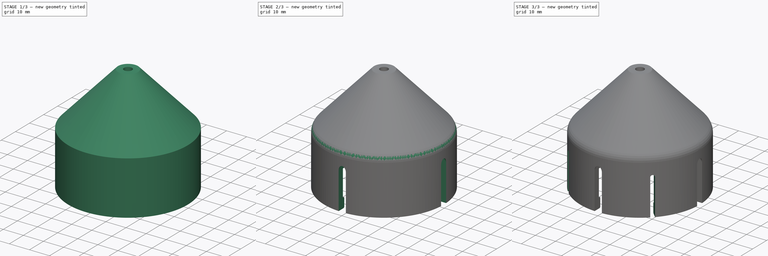
[diagram: build sequence overview — one tinted view per stage of 3, left to right]
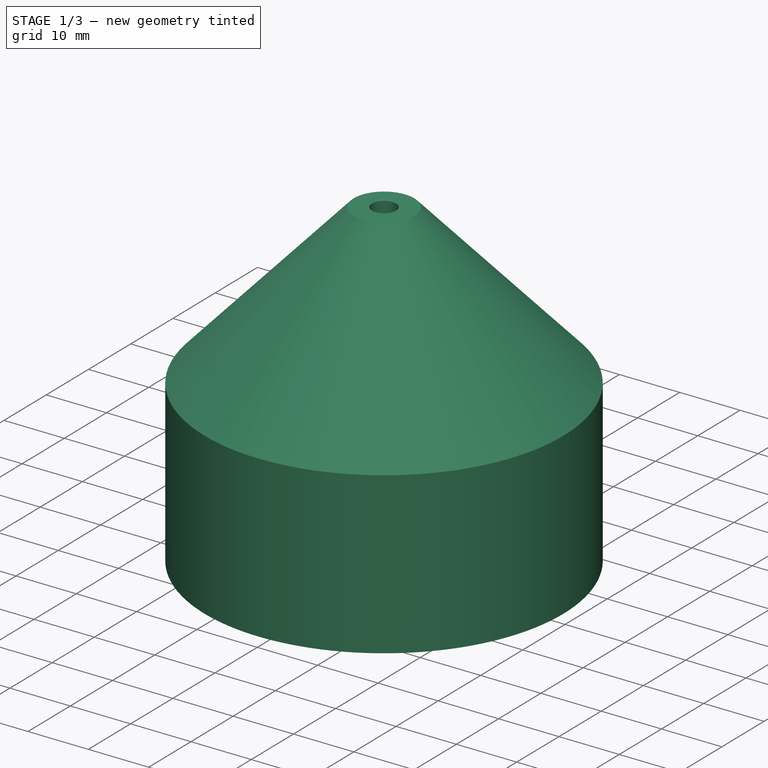
[diagram: stage 1 of 3 — iso view after this stage's code; geometry added in this stage tinted green]
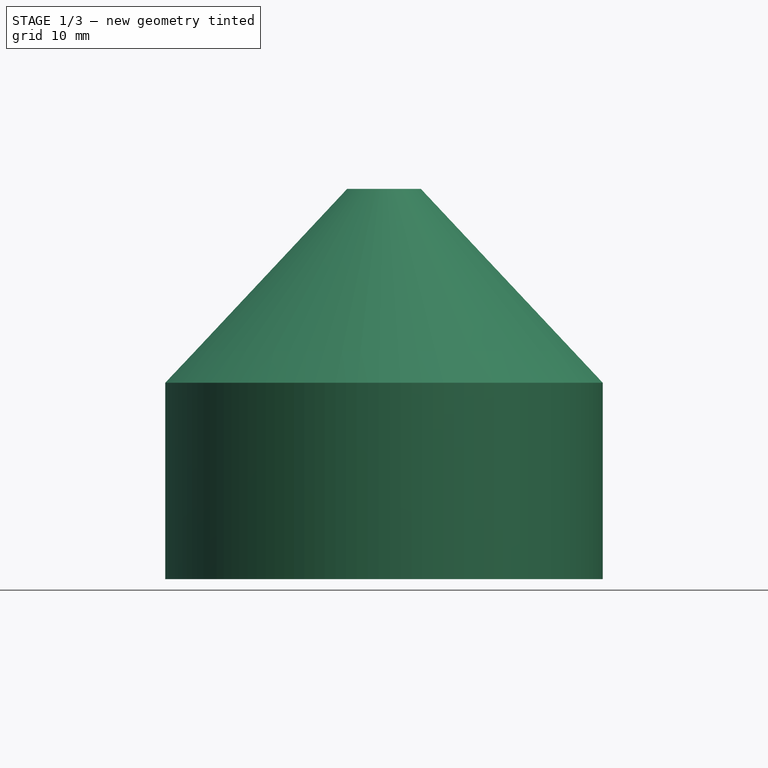
[diagram: stage 1 of 3 — front view after this stage's code; geometry added in this stage tinted green]
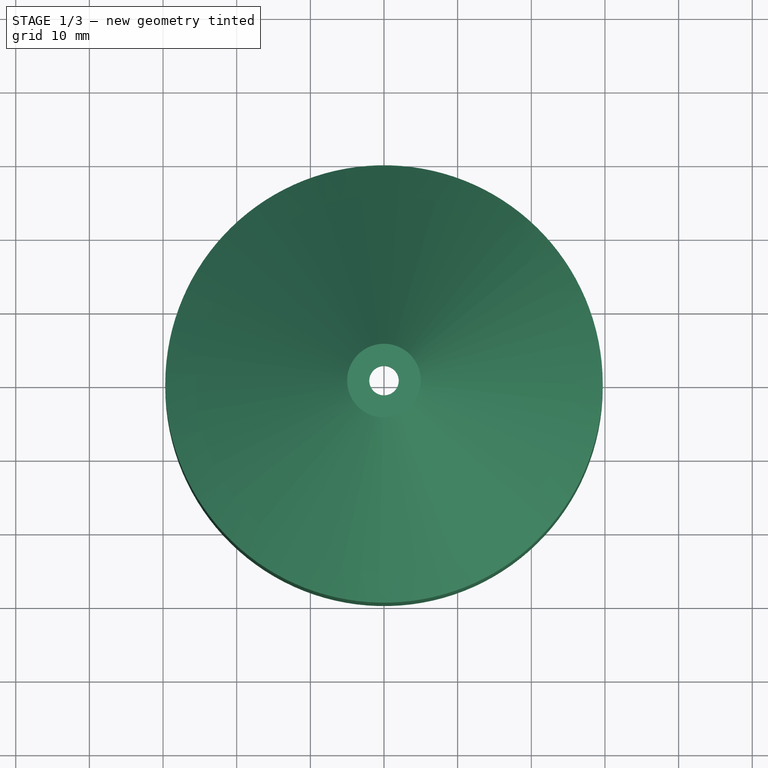
[diagram: stage 1 of 3 — top view after this stage's code; geometry added in this stage tinted green]
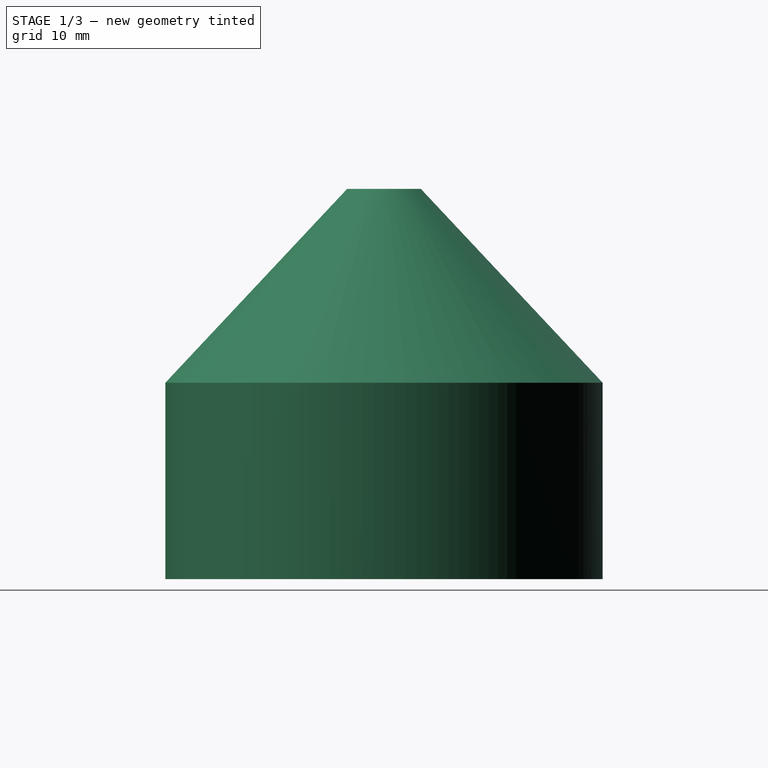
[diagram: stage 1 of 3 — right view after this stage's code; geometry added in this stage tinted green]
FCSTD DOCUMENT  (FreeCAD 0.18R16158 (Git))
Label: 40mm_drain_pipe_top
License: All rights reserved
LicenseURL: http://en.wikipedia.org/wiki/All_rights_reserved
objects: Sketcher::SketchObject×3, PartDesign::Fillet×2, PartDesign::Plane×2, PartDesign::Pocket×2, PartDesign::PolarPattern×2, PartDesign::Revolution×1, PartDesign::Body×1
note: 16 computed .brp shape members not serialized (recipe doc carries the construction recipe); baked Part::Feature solids carry a one-line shape summary decoded from their .brp

FEATURE [Sketcher::SketchObject] Sketch
  MapMode = 5
  Placement = pos=(0,0,0) rot=(1,0,0;1.5708rad)
  Support = -> [XZ_Plane]
  sketch-geometry (11):
    g0: LineSegment StartX=21.7 StartY=0 StartZ=0 EndX=21.7 EndY=12 EndZ=0
    g1: LineSegment StartX=21.7 StartY=12 StartZ=0 EndX=2 EndY=33 EndZ=0
    g2: LineSegment StartX=2 StartY=33 StartZ=0 EndX=2 EndY=35 EndZ=0
    g3: LineSegment StartX=2 StartY=35 StartZ=0 EndX=5 EndY=35 EndZ=0
    g4: LineSegment StartX=5 StartY=35 StartZ=0 EndX=29.7 EndY=8.67005 EndZ=0
    g5: LineSegment StartX=29.7 StartY=8.67005 StartZ=0 EndX=29.7 EndY=-18 EndZ=0
    g6: LineSegment StartX=29.7 StartY=-18 StartZ=0 EndX=25.7 EndY=-18 EndZ=0
    g7: LineSegment StartX=25.7 StartY=-18 StartZ=0 EndX=25.7 EndY=-13 EndZ=0
    g8: LineSegment StartX=25.7 StartY=-13 StartZ=0 EndX=26.7 EndY=-13 EndZ=0
    g9: LineSegment StartX=26.7 StartY=-13 StartZ=0 EndX=26.7 EndY=0 EndZ=0
    g10: LineSegment StartX=26.7 StartY=0 StartZ=0 EndX=21.7 EndY=0 EndZ=0
  constraints (33):
    c: PointOnObject(g0,g-1)
    c: Vertical(g0)
    c: Coincident(g0,g1)
    c: Vertical(g2)
    c: Coincident(g2,g3)
    c: Horizontal(g3)
    c: Coincident(g3,g4)
    c: Coincident(g4,g5)
    c: Vertical(g5)
    c: Coincident(g5,g6)
    c: Coincident(g6,g7)
    c: Vertical(g7)
    c: Coincident(g7,g8)
    c: Coincident(g8,g9)
    c: Vertical(g9)
    c: Coincident(g9,g10)
    c: Horizontal(g10)
    c: Coincident(g0,g10)
    c: Horizontal(g8)
    c: Horizontal(g6)
    c: DistanceY(g0,g0) = 12
    c: DistanceX(g10,g10) = 5
    c: DistanceY(g9,g9) = 13
    c: DistanceY(g7,g7) = 5
    c: DistanceX(g8,g5) = 3
    c: DistanceX(g-1,g0) = 21.7
    c: DistanceY(g-1,g2) = 33
    c: DistanceX(g3,g3) = 3
    c: Parallel(g1,g4)
    c: Coincident(g1,g2)
    c: DistanceY(g2,g2) = 2
    c: DistanceX(g-1,g1) = 2
    c: DistanceX(g6,g6) = 4
FEATURE [PartDesign::Revolution] Revolution
  Angle = 360
  Axis = (0,2e-16,1)
  Base = (0,0,0)
  Placement = pos=(0,0,0) rot=(1,0,0;1.5708rad)
  Profile = -> Sketch
  ReferenceAxis = -> Sketch [V_Axis]
  Reversed = true
FEATURE [PartDesign::Fillet] Fillet
  Base = -> Revolution [Face8]
  BaseFeature = -> Revolution
  Placement = pos=(0,0,0) rot=(1,0,0;1.5708rad)
  Radius = 0.6
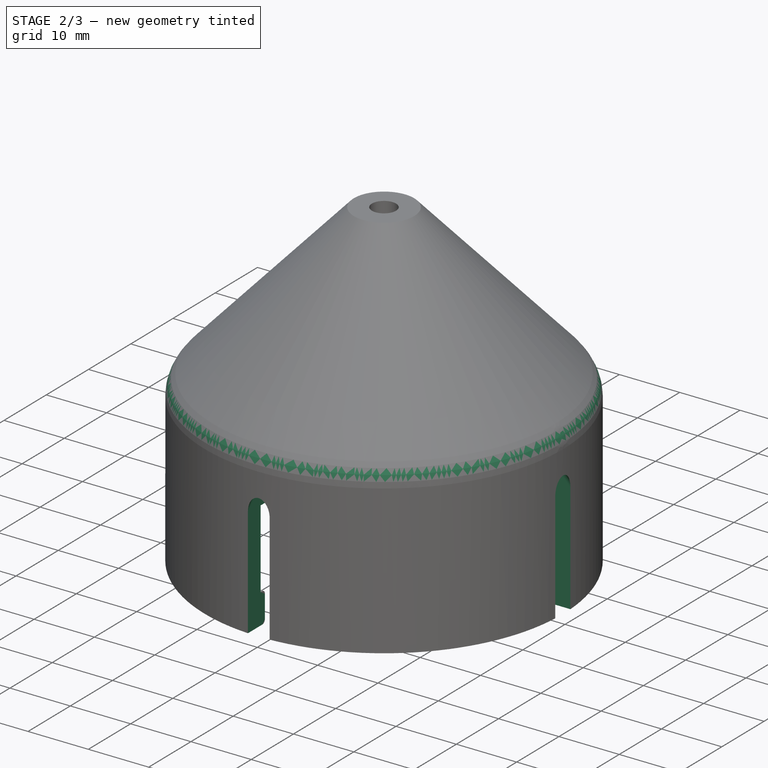
[diagram: stage 2 of 3 — iso view after this stage's code; geometry added in this stage tinted green]
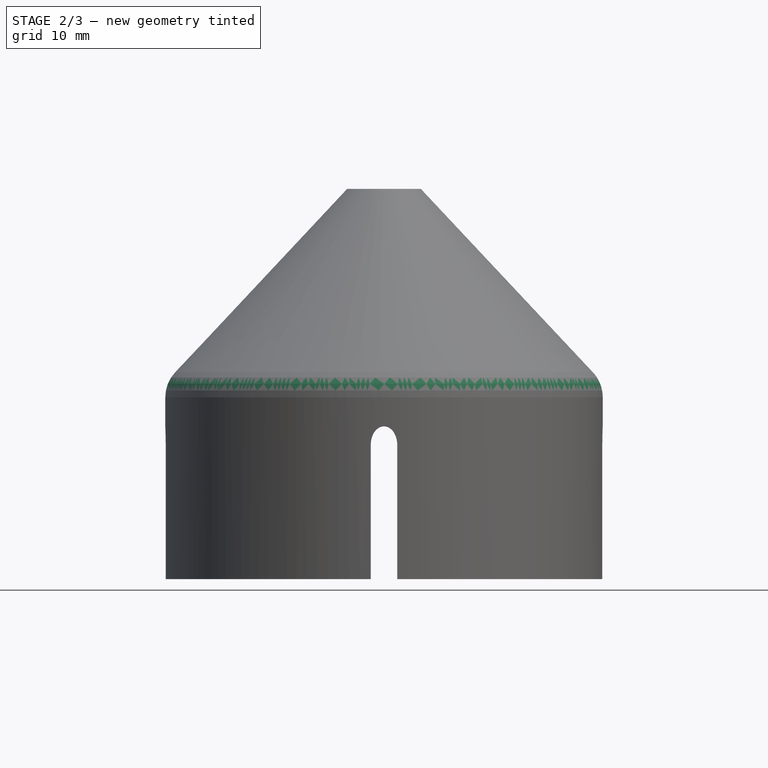
[diagram: stage 2 of 3 — front view after this stage's code; geometry added in this stage tinted green]
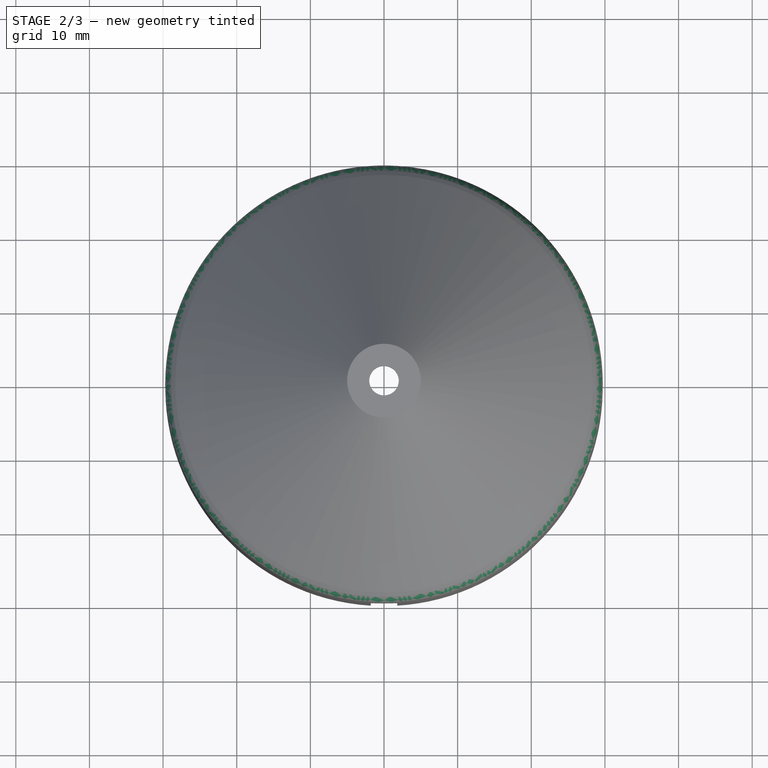
[diagram: stage 2 of 3 — top view after this stage's code; geometry added in this stage tinted green]
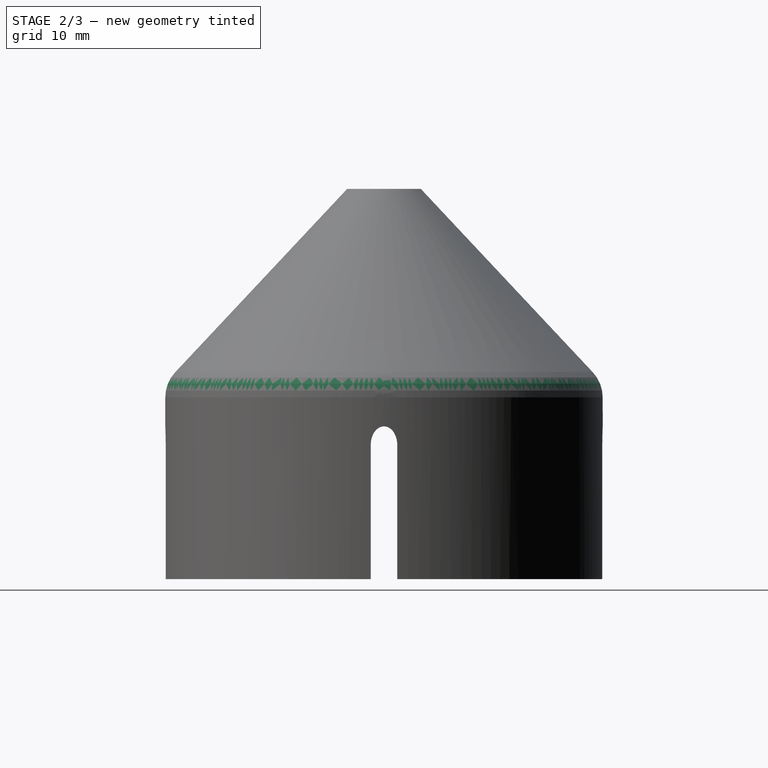
[diagram: stage 2 of 3 — right view after this stage's code; geometry added in this stage tinted green]
FEATURE [PartDesign::Plane] DatumPlane
  Length = 73.1482
  MapMode = 7
  Placement = pos=(4.5,3.89e-14,35) rot=(0.350053,-0.350053,-0.868865;1.7109rad)
  ResizeMode = 0
  Width = 93.2999
FEATURE [Sketcher::SketchObject] Sketch001
  MapMode = 5
  Placement = pos=(4.5,3.89e-14,35) rot=(0.350053,-0.350053,-0.868865;1.7109rad)
  Support = -> [DatumPlane]
  sketch-geometry (4):
    g0: ArcOfCircle CenterX=1.3968e-12 CenterY=-32.5063 CenterZ=0 NormalX=0 NormalY=0 NormalZ=1 AngleXU=0 Radius=1.8 StartAngle=3.14159 EndAngle=6.28319
    g1: ArcOfCircle CenterX=0 CenterY=-6 CenterZ=0 NormalX=0 NormalY=0 NormalZ=1 AngleXU=0 Radius=1.8 StartAngle=0 EndAngle=3.14159
    g2: LineSegment StartX=1.8 StartY=-32.5063 StartZ=0 EndX=1.8 EndY=-6 EndZ=0
    g3: LineSegment StartX=-1.8 StartY=-32.5063 StartZ=0 EndX=-1.8 EndY=-6 EndZ=0
  constraints (9):
    c: Tangent(g0,g3) = 1.5708
    c: Tangent(g0,g2) = -1.5708
    c: Tangent(g2,g1) = -1.5708
    c: Tangent(g3,g1) = 1.5708
    c: Vertical(g2)
    c: Equal(g0,g1)
    c: PointOnObject(g1,g-2)
    c: DistanceX(g0,g0) = 3.6
    c: DistanceY(g1,g-1) = 6
FEATURE [PartDesign::Pocket] Pocket
  BaseFeature = -> Fillet
  Length = 5
  Length2 = 100
  Placement = pos=(0,0,0) rot=(1,0,0;1.5708rad)
  Profile = -> Sketch001
  Type = 1
FEATURE [PartDesign::PolarPattern] PolarPattern
  Angle = 360
  Axis = -> Z_Axis
  BaseFeature = -> Pocket
  Occurrences = 4
  Originals = -> [Pocket]
  Placement = pos=(0,0,0) rot=(1,0,0;1.5708rad)
FEATURE [PartDesign::Fillet] Fillet001
  Base = -> PolarPattern [Edge16]
  BaseFeature = -> PolarPattern
  Placement = pos=(0,0,0) rot=(1,0,0;1.5708rad)
  Radius = 5
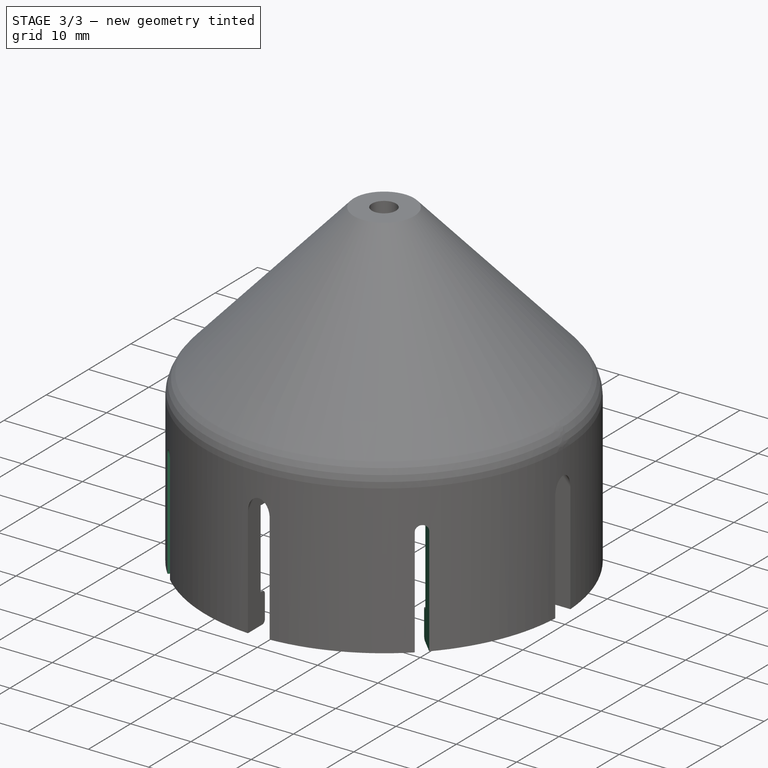
[diagram: stage 3 of 3 — iso view after this stage's code; geometry added in this stage tinted green]
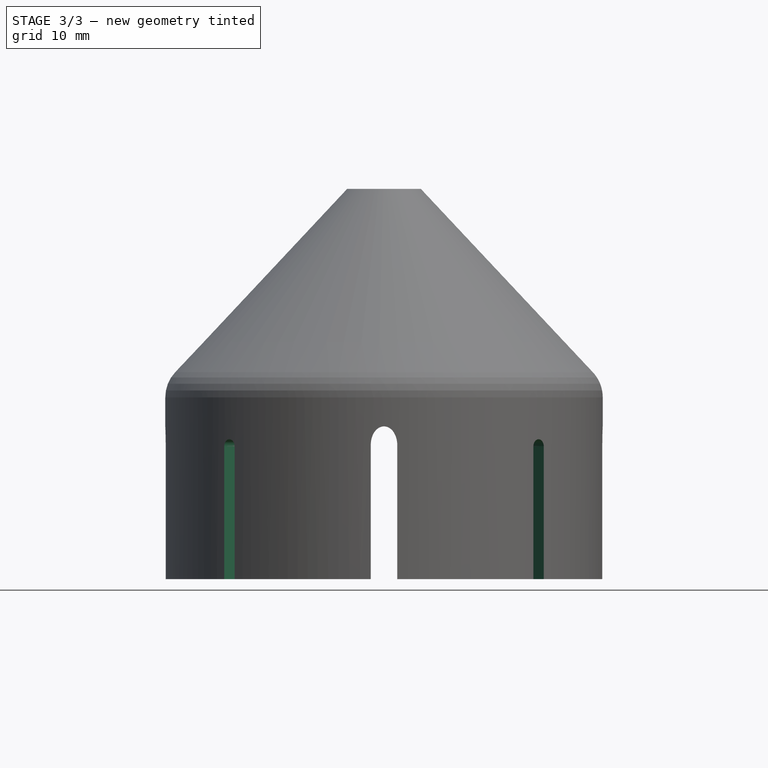
[diagram: stage 3 of 3 — front view after this stage's code; geometry added in this stage tinted green]
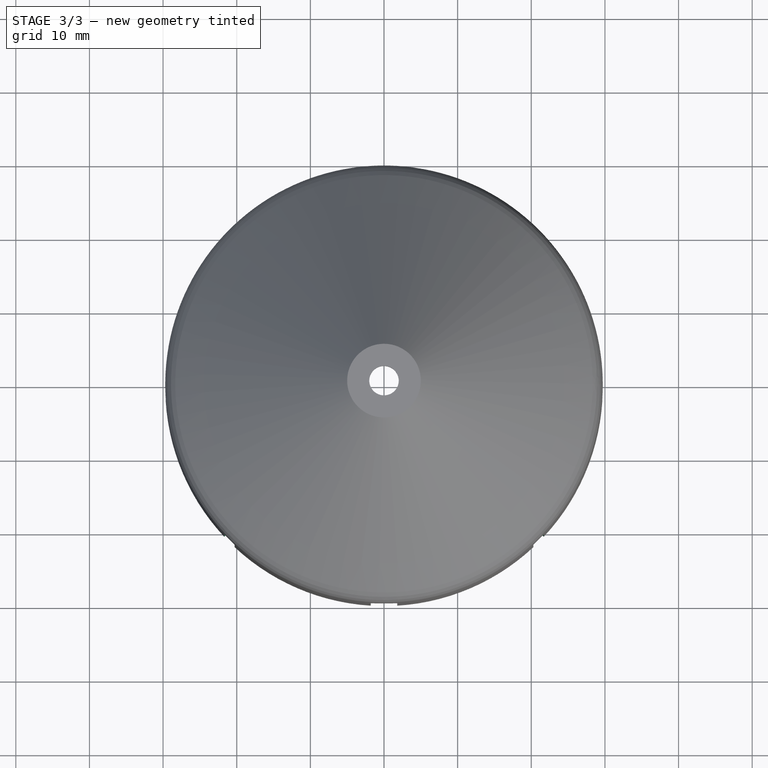
[diagram: stage 3 of 3 — top view after this stage's code; geometry added in this stage tinted green]
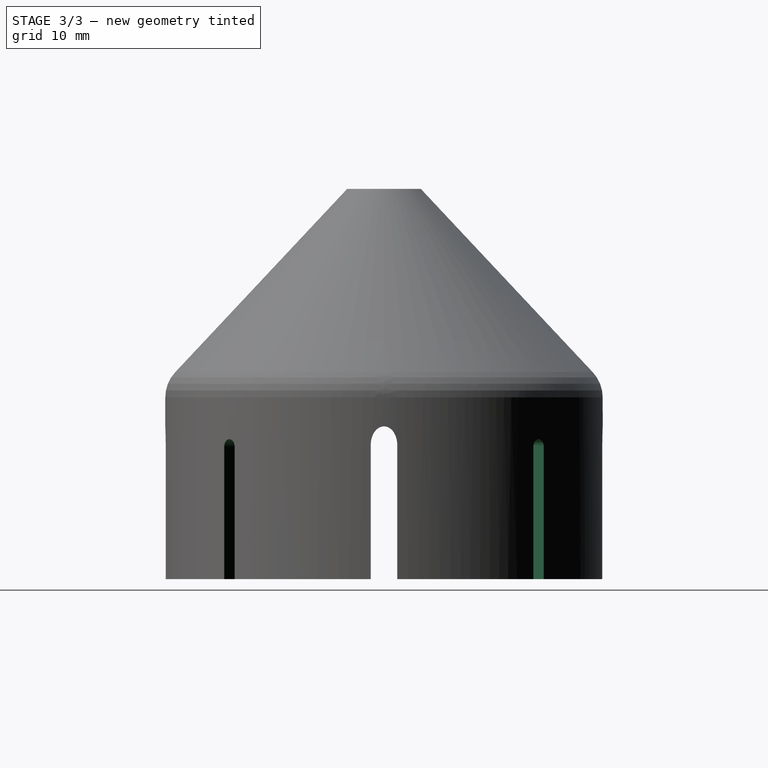
[diagram: stage 3 of 3 — right view after this stage's code; geometry added in this stage tinted green]
FEATURE [PartDesign::Plane] DatumPlane001
  AttachmentOffset = pos=(0,0,0) rot=(0,1,0;0.785398rad)
  Length = 97.3492
  MapMode = 5
  Placement = pos=(0,0,0) rot=(0.281085,0.678598,0.678598;2.59356rad)
  ResizeMode = 0
  Support = -> [YZ_Plane]
  Width = 66.345
FEATURE [Sketcher::SketchObject] Sketch002
  MapMode = 2
  Placement = pos=(0,0,0) rot=(0.281085,0.678598,0.678598;2.59356rad)
  Support = -> [DatumPlane001]
  sketch-geometry (4):
    g0: ArcOfCircle CenterX=0 CenterY=0 CenterZ=0 NormalX=0 NormalY=0 NormalZ=1 AngleXU=0 Radius=1 StartAngle=1e-16 EndAngle=3.14159
    g1: ArcOfCircle CenterX=0 CenterY=-30 CenterZ=0 NormalX=0 NormalY=0 NormalZ=1 AngleXU=0 Radius=1 StartAngle=3.14159 EndAngle=6.28319
    g2: LineSegment StartX=-1 StartY=1e-16 StartZ=0 EndX=-1 EndY=-30 EndZ=0
    g3: LineSegment StartX=1 StartY=1e-16 StartZ=0 EndX=1 EndY=-30 EndZ=0
  constraints (9):
    c: Tangent(g0,g3) = 1.5708
    c: Tangent(g0,g2) = -1.5708
    c: Tangent(g2,g1) = -1.5708
    c: Tangent(g3,g1) = 1.5708
    c: Vertical(g2)
    c: Equal(g0,g1)
    c: Coincident(g0,g-1)
    c: DistanceX(g1,g1) = 2
    c: DistanceY(g1,g0) = 30
FEATURE [PartDesign::Pocket] Pocket001
  BaseFeature = -> Fillet001
  Length = 5
  Length2 = 100
  Placement = pos=(0,0,0) rot=(1,0,0;1.5708rad)
  Profile = -> Sketch002
  Type = 1
FEATURE [PartDesign::PolarPattern] PolarPattern001
  Angle = 360
  Axis = -> Z_Axis
  BaseFeature = -> Pocket001
  Occurrences = 4
  Originals = -> [Pocket001]
  Placement = pos=(0,0,0) rot=(1,0,0;1.5708rad)
FEATURE [PartDesign::Body] Body
  Group = -> [Sketch,Revolution,Fillet,DatumPlane,Sketch001,Pocket,PolarPattern,Fillet001,Sketch002,DatumPlane001,Pocket001,PolarPattern001]
  Origin = -> Origin
  Tip = -> PolarPattern001
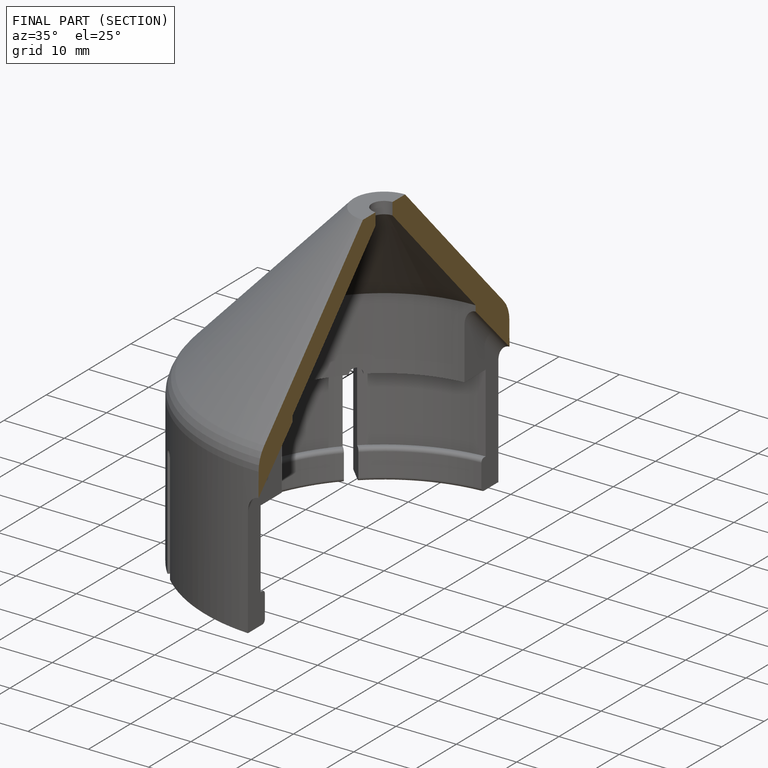
[diagram: finished part — half-section view (interior)]
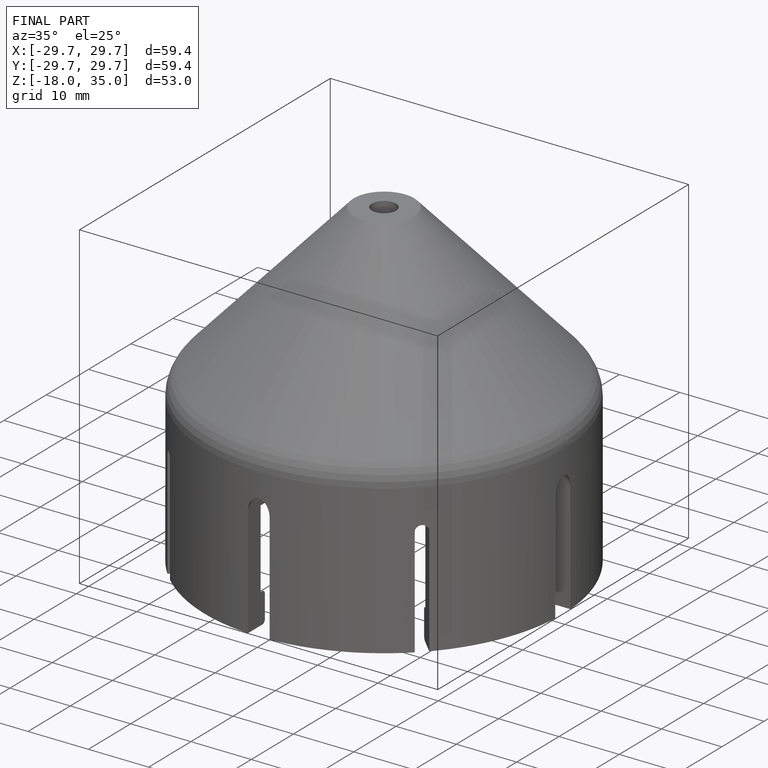
[diagram: finished part — iso view with bounding-box wireframe]
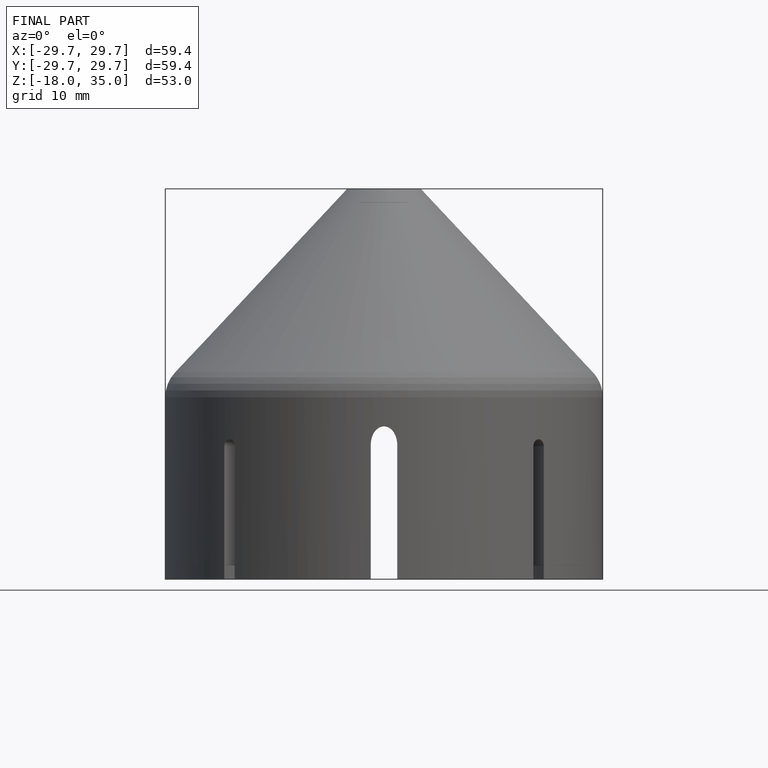
[diagram: finished part — front view with bounding-box wireframe]
